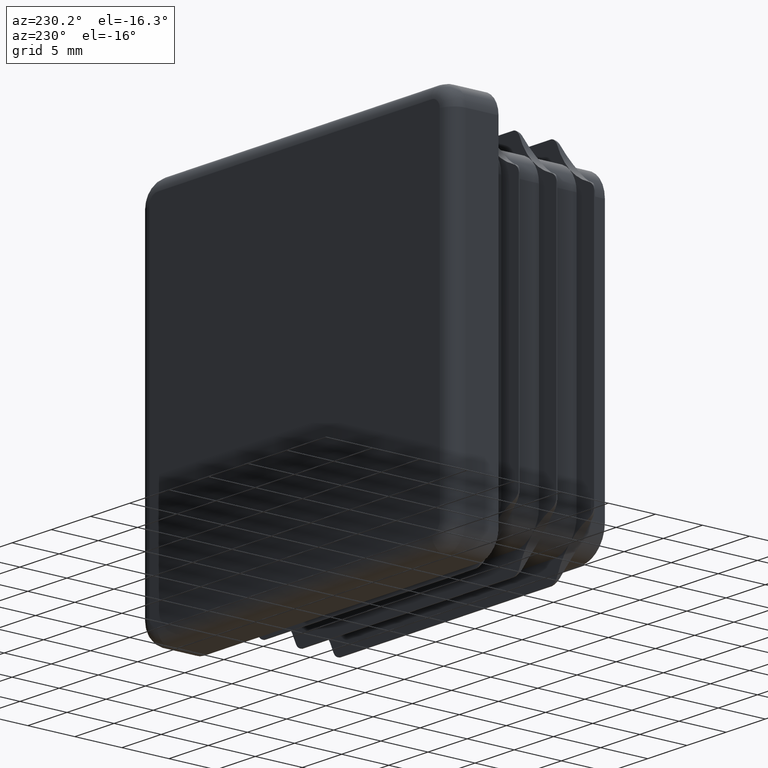
[diagram: clean part render]
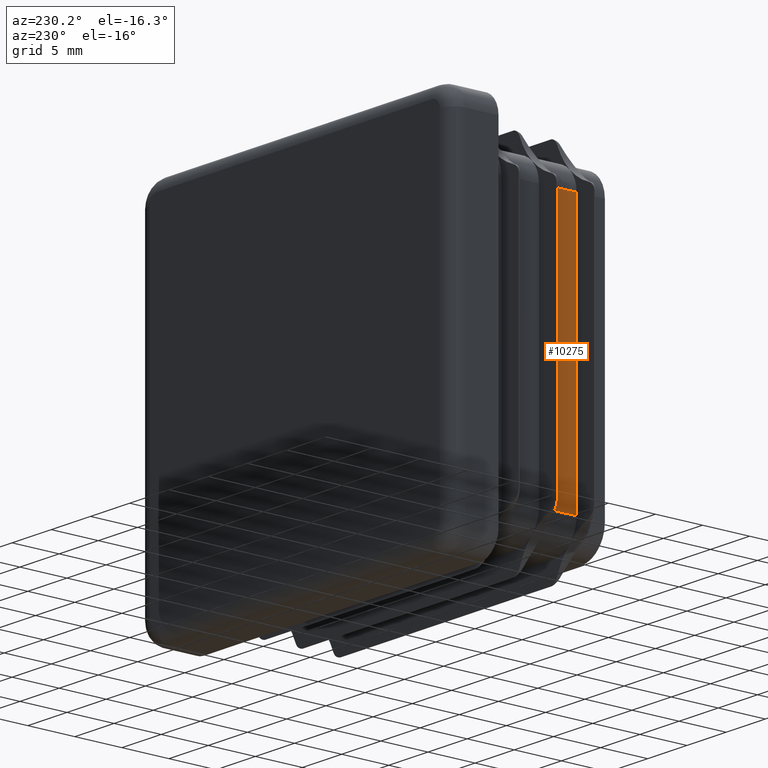
[diagram: same view with one face highlighted and labeled with its STEP entity id]
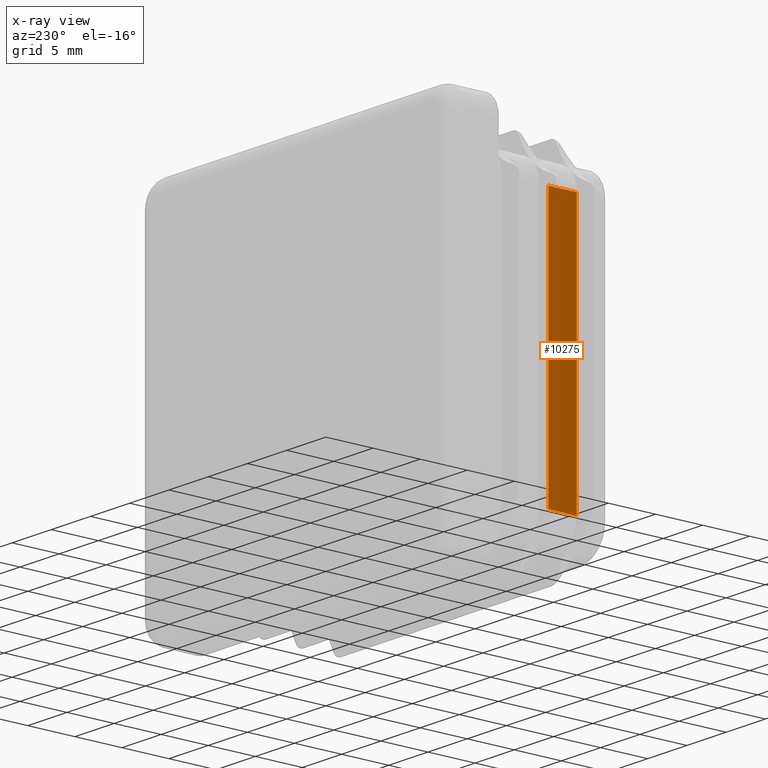
[diagram: x-ray of the same camera — body ghosted, the highlighted face saturated]
A machine part, auxiliary view. The second image highlights one B-rep face of the part: STEP entity #10275.
The next image is the same camera in x-ray: the body ghosted, the highlighted face saturated — about 0% of this face is hidden behind the body in this view.
In plain terms, the highlighted planar face has unit normal (1, 0, 0).
Its self-contained STEP definition (entity closure, byte-faithful):
#1113 = ORIENTED_EDGE ( 'NONE', *, *, #2921, .F. ) ;
#1878 = CARTESIAN_POINT ( 'NONE',  ( -16.75000000000008171, -11.00000000000000178, -13.75000000000000533 ) ) ;
#2073 = FACE_OUTER_BOUND ( 'NONE', #12691, .T. ) ;
#2107 = DIRECTION ( 'NONE',  ( -0.000000000000000000, 1.000000000000000000, -0.000000000000000000 ) ) ;
#2543 = ORIENTED_EDGE ( 'NONE', *, *, #16921, .F. ) ;
#2921 = EDGE_CURVE ( 'NONE', #15435, #5523, #8831, .T. ) ;
#3333 = EDGE_CURVE ( 'NONE', #5673, #6557, #18162, .T. ) ;
#3439 = CARTESIAN_POINT ( 'NONE',  ( -16.74999999999999645, -11.00000000000000178, -13.75000000000000533 ) ) ;
#3937 = LINE ( 'NONE', #1878, #4921 ) ;
#4921 = VECTOR ( 'NONE', #11553, 1000.000000000000000 ) ;
#5082 = VECTOR ( 'NONE', #2107, 1000.000000000000000 ) ;
#5523 = VERTEX_POINT ( 'NONE', #8530 ) ;
#5673 = VERTEX_POINT ( 'NONE', #5674 ) ;
#5674 = CARTESIAN_POINT ( 'NONE',  ( -16.75000000000000000, -11.00000000000000178, 13.74999999999998757 ) ) ;
#6557 = VERTEX_POINT ( 'NONE', #20088 ) ;
#6589 = DIRECTION ( 'NONE',  ( 0.000000000000000000, 0.000000000000000000, 1.000000000000000000 ) ) ;
#8530 = CARTESIAN_POINT ( 'NONE',  ( -16.74999999999999645, -8.000000000000017764, -13.75000000000000533 ) ) ;
#8831 = LINE ( 'NONE', #13649, #13215 ) ;
#8982 = CARTESIAN_POINT ( 'NONE',  ( -16.75000000000000000, -14.00000000000000000, 13.74999999999998757 ) ) ;
#9054 = DIRECTION ( 'NONE',  ( 1.000000000000000000, 0.000000000000000000, 0.000000000000000000 ) ) ;
#9142 = ORIENTED_EDGE ( 'NONE', *, *, #3333, .T. ) ;
#10066 = CARTESIAN_POINT ( 'NONE',  ( -16.75000000000004263, -8.000000000000001776, -13.75000000000000533 ) ) ;
#10275 = ADVANCED_FACE ( 'NONE', ( #2073 ), #13473, .F. ) ;
#10427 = DIRECTION ( 'NONE',  ( 0.000000000000000000, 0.000000000000000000, -1.000000000000000000 ) ) ;
#11073 = DIRECTION ( 'NONE',  ( -0.000000000000000000, 1.000000000000000000, -0.000000000000000000 ) ) ;
#11553 = DIRECTION ( 'NONE',  ( 0.000000000000000000, 0.000000000000000000, 1.000000000000000000 ) ) ;
#12691 = EDGE_LOOP ( 'NONE', ( #20409, #9142, #2543, #1113 ) ) ;
#13215 = VECTOR ( 'NONE', #11073, 1000.000000000000000 ) ;
#13473 = PLANE ( 'NONE',  #14769 ) ;
#13649 = CARTESIAN_POINT ( 'NONE',  ( -16.74999999999999645, -14.00000000000000000, -13.75000000000000533 ) ) ;
#14769 = AXIS2_PLACEMENT_3D ( 'NONE', #8982, #9054, #10427 ) ;
#15250 = VECTOR ( 'NONE', #6589, 1000.000000000000000 ) ;
#15435 = VERTEX_POINT ( 'NONE', #3439 ) ;
#16147 = EDGE_CURVE ( 'NONE', #15435, #5673, #3937, .T. ) ;
#16162 = CARTESIAN_POINT ( 'NONE',  ( -16.75000000000000000, -14.00000000000000000, 13.74999999999998757 ) ) ;
#16921 = EDGE_CURVE ( 'NONE', #5523, #6557, #19435, .T. ) ;
#18162 = LINE ( 'NONE', #16162, #5082 ) ;
#19435 = LINE ( 'NONE', #10066, #15250 ) ;
#20088 = CARTESIAN_POINT ( 'NONE',  ( -16.75000000000000000, -8.000000000000015987, 13.74999999999998757 ) ) ;
#20409 = ORIENTED_EDGE ( 'NONE', *, *, #16147, .T. ) ;